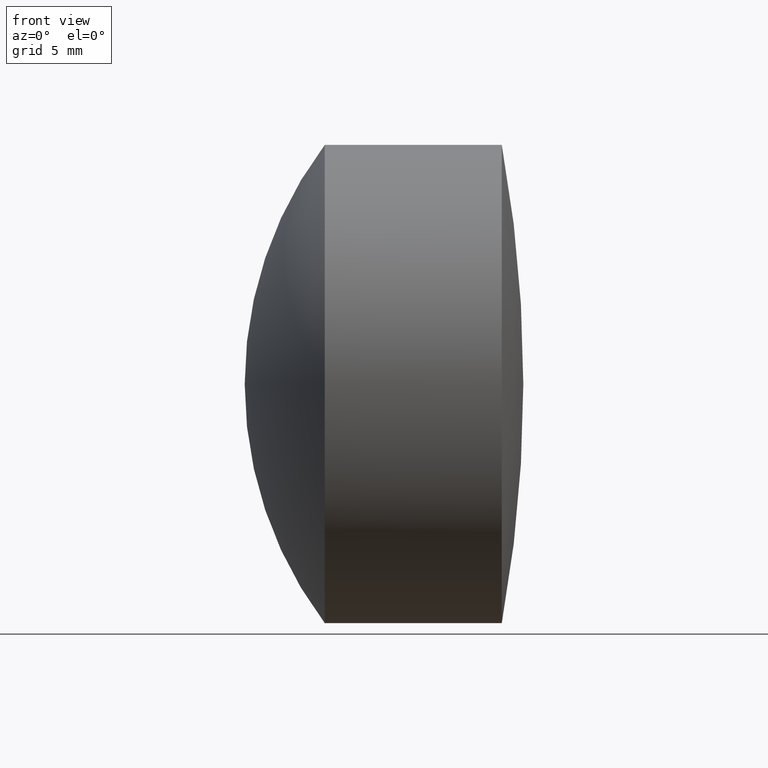
[diagram: clean part render]
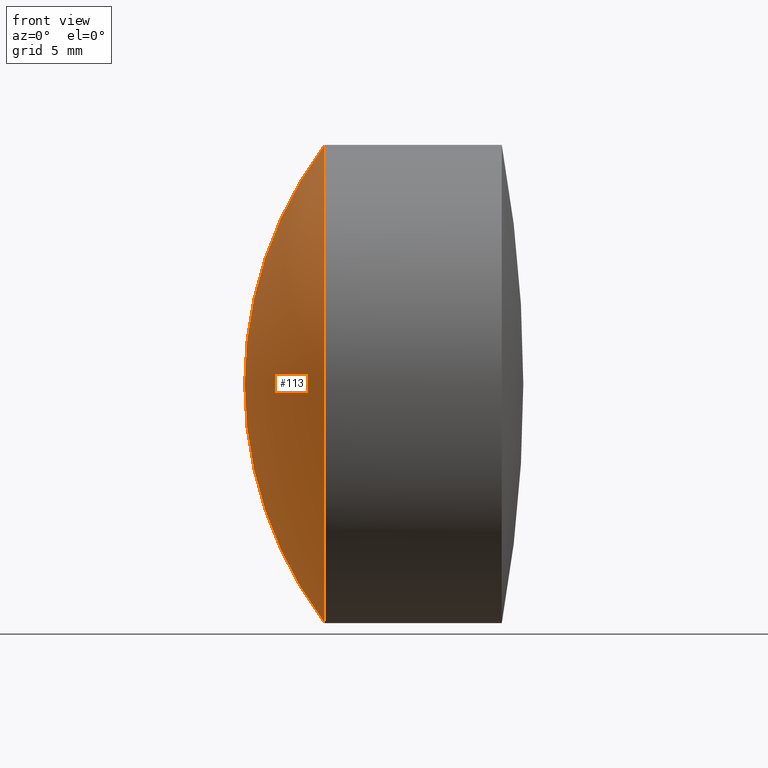
[diagram: same view with one face highlighted and labeled with its STEP entity id]
A machine part, front view. The second image highlights one B-rep face of the part: STEP entity #113.
In plain terms, the highlighted spherical surface has radius 21.09 mm.
Its self-contained STEP definition (entity closure, byte-faithful):
#13 = DIRECTION ( 'NONE',  ( 0.0000000000000000000, 0.0000000000000000000, 1.000000000000000000 ) ) ;
#40 = CARTESIAN_POINT ( 'NONE',  ( 31.66023858577234100, 0.0000000000000000000, -4.336808766610423000E-016 ) ) ;
#77 = ORIENTED_EDGE ( 'NONE', *, *, #109, .F. ) ;
#80 = CARTESIAN_POINT ( 'NONE',  ( 14.82283676720187200, 1.555301434917138400E-015, -12.69999999999999900 ) ) ;
#82 = EDGE_LOOP ( 'NONE', ( #77, #245, #216 ) ) ;
#97 = DIRECTION ( 'NONE',  ( 0.0000000000000000000, 0.0000000000000000000, -1.000000000000000000 ) ) ;
#100 = VERTEX_POINT ( 'NONE', #179 ) ;
#103 = EDGE_CURVE ( 'NONE', #100, #280, #266, .T. ) ;
#109 = EDGE_CURVE ( 'NONE', #293, #280, #118, .T. ) ;
#113 = ADVANCED_FACE ( 'NONE', ( #194 ), #204, .T. ) ;
#118 = CIRCLE ( 'NONE', #282, 21.09000000000000000 ) ;
#150 = AXIS2_PLACEMENT_3D ( 'NONE', #276, #202, #169 ) ;
#159 = CIRCLE ( 'NONE', #150, 12.69999999999999900 ) ;
#164 = CARTESIAN_POINT ( 'NONE',  ( 10.57023858577233900, 0.0000000000000000000, 8.577091730398417100E-016 ) ) ;
#169 = DIRECTION ( 'NONE',  ( 0.0000000000000000000, 0.0000000000000000000, 1.000000000000000000 ) ) ;
#177 = AXIS2_PLACEMENT_3D ( 'NONE', #232, #301, #13 ) ;
#179 = CARTESIAN_POINT ( 'NONE',  ( 14.82283676720187200, 0.0000000000000000000, 12.69999999999999900 ) ) ;
#194 = FACE_OUTER_BOUND ( 'NONE', #82, .T. ) ;
#202 = DIRECTION ( 'NONE',  ( -1.000000000000000000, -0.0000000000000000000, -0.0000000000000000000 ) ) ;
#203 = EDGE_CURVE ( 'NONE', #293, #100, #159, .T. ) ;
#204 = SPHERICAL_SURFACE ( 'NONE', #177, 21.09000000000000000 ) ;
#206 = DIRECTION ( 'NONE',  ( 0.0000000000000000000, -1.224646799147353200E-016, 1.000000000000000000 ) ) ;
#212 = DIRECTION ( 'NONE',  ( -0.0000000000000000000, 1.000000000000000000, 1.224646799147353200E-016 ) ) ;
#216 = ORIENTED_EDGE ( 'NONE', *, *, #103, .T. ) ;
#232 = CARTESIAN_POINT ( 'NONE',  ( 31.66023858577234100, 0.0000000000000000000, -4.336808766610423000E-016 ) ) ;
#245 = ORIENTED_EDGE ( 'NONE', *, *, #203, .T. ) ;
#266 = CIRCLE ( 'NONE', #347, 21.09000000000000000 ) ;
#276 = CARTESIAN_POINT ( 'NONE',  ( 14.82283676720187400, 0.0000000000000000000, 0.0000000000000000000 ) ) ;
#280 = VERTEX_POINT ( 'NONE', #164 ) ;
#282 = AXIS2_PLACEMENT_3D ( 'NONE', #40, #212, #206 ) ;
#293 = VERTEX_POINT ( 'NONE', #80 ) ;
#295 = DIRECTION ( 'NONE',  ( 0.0000000000000000000, -1.000000000000000000, 0.0000000000000000000 ) ) ;
#301 = DIRECTION ( 'NONE',  ( 0.0000000000000000000, 1.000000000000000000, 0.0000000000000000000 ) ) ;
#320 = CARTESIAN_POINT ( 'NONE',  ( 31.66023858577234100, 0.0000000000000000000, -4.336808766610423000E-016 ) ) ;
#347 = AXIS2_PLACEMENT_3D ( 'NONE', #320, #295, #97 ) ;